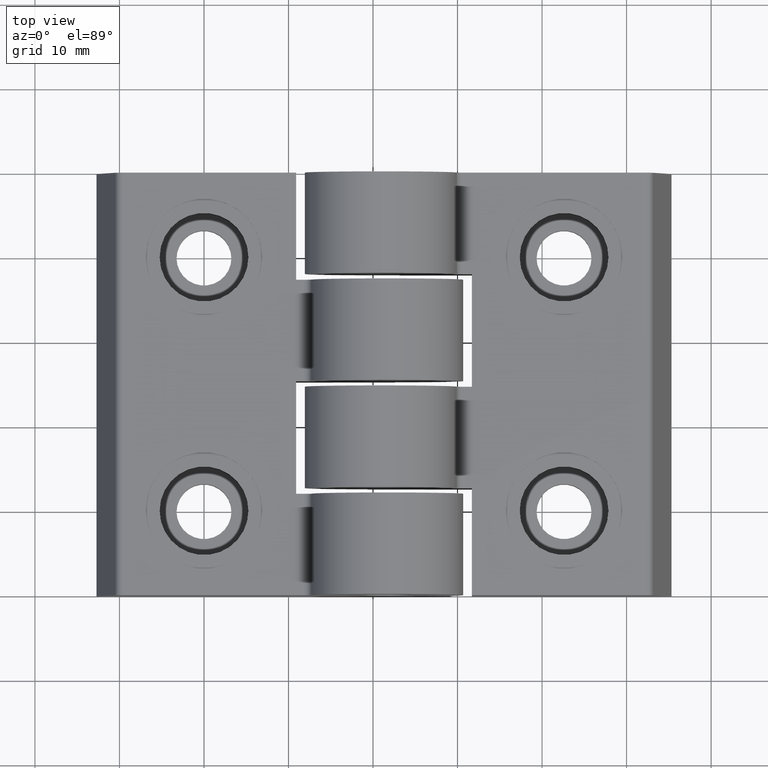
[diagram: clean part render]
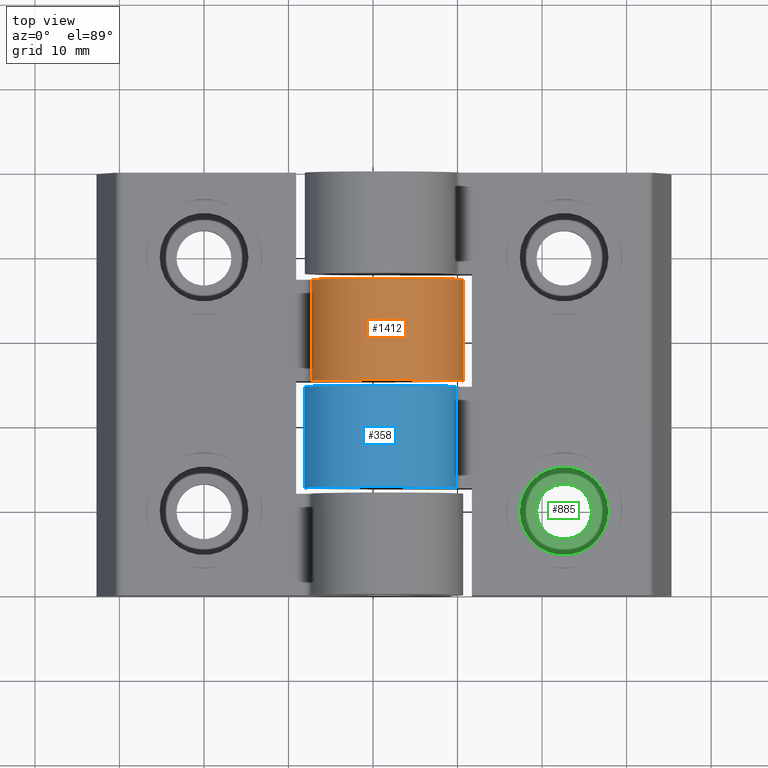
[diagram: same view with three faces highlighted in distinct colors, each labeled with its STEP entity id]
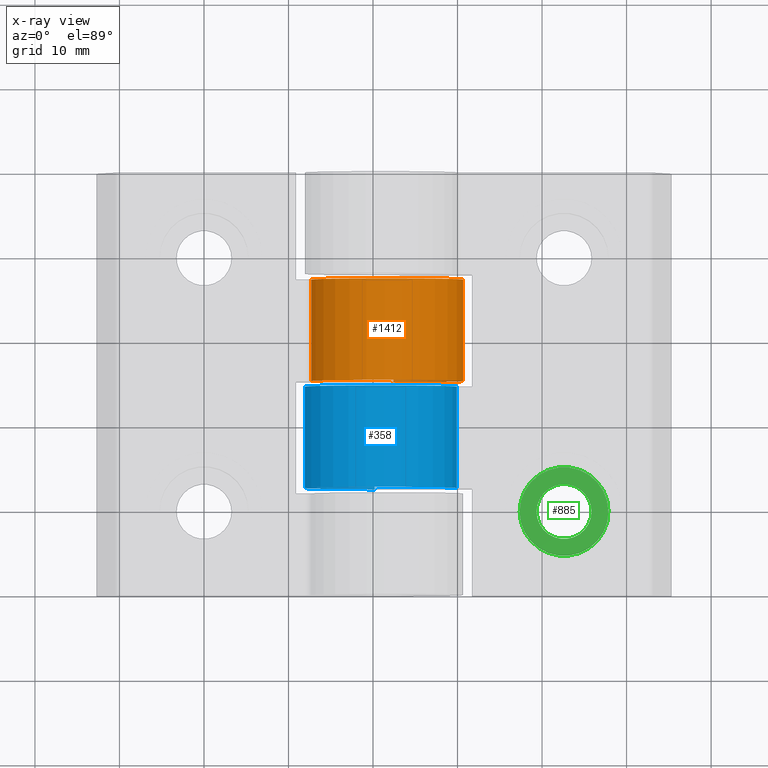
[diagram: x-ray of the same camera — body ghosted, the three highlighted faces saturated]
A machine part, top view with three faces highlighted in distinct colors.
The next image is the same camera in x-ray (body ghosted, the three faces saturated) — at least one of them is partly hidden behind the body in this view.
Their STEP definitions:

[orange] entity #1412 — the highlighted cylindrical surface (partial cylindrical patch) has radius 9 mm, axis along (0, 1, -0).
#1320=CARTESIAN_POINT('',(12.728006982865679,15.331985886236993,10.899997909476069));
#1321=VERTEX_POINT('',#1320);
#1329=CARTESIAN_POINT('',(12.728006982865679,27.331983222189216,10.899997909476069));
#1330=VERTEX_POINT('',#1329);
#1331=CARTESIAN_POINT('',(12.728006982865683,15.331985886236993,10.899997909476069));
#1332=DIRECTION('',(0.0,1.0,0.0));
#1333=VECTOR('',#1332,11.999997335952223);
#1334=LINE('',#1331,#1333);
#1335=EDGE_CURVE('',#1321,#1330,#1334,.T.);
#1380=CARTESIAN_POINT('',(21.682901271888966,-9.999997779959813,10.000000666356073));
#1381=DIRECTION('',(1.224647E-016,1.0,-6.123234E-017));
#1382=DIRECTION('',(-0.994987475757264,1.279740E-016,0.099999615430205));
#1383=AXIS2_PLACEMENT_3D('',#1380,#1381,#1382);
#1384=CYLINDRICAL_SURFACE('',#1383,9.000007042508656);
#1385=ORIENTED_EDGE('',*,*,#1335,.F.);
#1386=CARTESIAN_POINT('',(22.408279035607819,15.331985886236993,1.029273055670983));
#1387=VERTEX_POINT('',#1386);
#1388=CARTESIAN_POINT('',(21.682901271888969,15.331985886236993,10.000000666356071));
#1389=DIRECTION('',(-1.224647E-016,-1.0,6.123234E-017));
#1390=DIRECTION('',(-0.994987475757264,1.279740E-016,0.099999615430204));
#1391=AXIS2_PLACEMENT_3D('',#1388,#1389,#1390);
#1392=CIRCLE('',#1391,9.000007042508656);
#1393=EDGE_CURVE('',#1387,#1321,#1392,.T.);
#1394=ORIENTED_EDGE('',*,*,#1393,.F.);
#1395=CARTESIAN_POINT('',(22.408279035607819,27.331983222189216,1.029273055670982));
#1396=VERTEX_POINT('',#1395);
#1397=CARTESIAN_POINT('',(22.408279035607823,15.331985886236993,1.029273055670983));
#1398=DIRECTION('',(0.0,1.0,0.0));
#1399=VECTOR('',#1398,11.999997335952223);
#1400=LINE('',#1397,#1399);
#1401=EDGE_CURVE('',#1387,#1396,#1400,.T.);
#1402=ORIENTED_EDGE('',*,*,#1401,.T.);
#1403=CARTESIAN_POINT('',(21.682901271888969,27.331983222189216,10.000000666356071));
#1404=DIRECTION('',(1.224647E-016,1.0,-6.123234E-017));
#1405=DIRECTION('',(-0.994987475757264,1.279740E-016,0.099999615430204));
#1406=AXIS2_PLACEMENT_3D('',#1403,#1404,#1405);
#1407=CIRCLE('',#1406,9.000007042508656);
#1408=EDGE_CURVE('',#1330,#1396,#1407,.T.);
#1409=ORIENTED_EDGE('',*,*,#1408,.F.);
#1410=EDGE_LOOP('',(#1385,#1394,#1402,#1409));
#1411=FACE_OUTER_BOUND('',#1410,.T.);
#1412=ADVANCED_FACE('',(#1411),#1384,.T.);

[blue] entity #358 — the highlighted cylindrical surface (partial cylindrical patch) has radius 9 mm, axis along (0, -1, 0).
#266=CARTESIAN_POINT('',(29.871981079764339,14.668011263642171,10.899997909476069));
#267=VERTEX_POINT('',#266);
#275=CARTESIAN_POINT('',(29.871981079764339,2.668013927689949,10.899997909476070));
#276=VERTEX_POINT('',#275);
#277=CARTESIAN_POINT('',(29.871981079764339,14.668011263642171,10.899997909476070));
#278=DIRECTION('',(0.0,-1.0,0.0));
#279=VECTOR('',#278,11.999997335952223);
#280=LINE('',#277,#279);
#281=EDGE_CURVE('',#267,#276,#280,.T.);
#326=CARTESIAN_POINT('',(20.917086790741052,39.999994929838977,10.000000666356071));
#327=DIRECTION('',(7.703720E-034,-1.0,6.123234E-017));
#328=DIRECTION('',(0.994987475757264,6.123210E-018,0.099999615430205));
#329=AXIS2_PLACEMENT_3D('',#326,#327,#328);
#330=CYLINDRICAL_SURFACE('',#329,9.000007042508656);
#331=ORIENTED_EDGE('',*,*,#281,.F.);
#332=CARTESIAN_POINT('',(20.191709027022199,14.668011263642171,1.029273055670983));
#333=VERTEX_POINT('',#332);
#334=CARTESIAN_POINT('',(20.917086790741052,14.668011263642171,10.000000666356071));
#335=DIRECTION('',(-7.703720E-034,1.0,-6.123234E-017));
#336=DIRECTION('',(0.994987475757264,6.123210E-018,0.099999615430204));
#337=AXIS2_PLACEMENT_3D('',#334,#335,#336);
#338=CIRCLE('',#337,9.000007042508656);
#339=EDGE_CURVE('',#333,#267,#338,.T.);
#340=ORIENTED_EDGE('',*,*,#339,.F.);
#341=CARTESIAN_POINT('',(20.191709027022199,2.668013927689948,1.029273055670984));
#342=VERTEX_POINT('',#341);
#343=CARTESIAN_POINT('',(20.191709027022199,14.668011263642171,1.029273055670983));
#344=DIRECTION('',(0.0,-1.0,0.0));
#345=VECTOR('',#344,11.999997335952223);
#346=LINE('',#343,#345);
#347=EDGE_CURVE('',#333,#342,#346,.T.);
#348=ORIENTED_EDGE('',*,*,#347,.T.);
#349=CARTESIAN_POINT('',(20.917086790741052,2.668013927689949,10.000000666356073));
#350=DIRECTION('',(7.703720E-034,-1.0,6.123234E-017));
#351=DIRECTION('',(0.994987475757264,6.123210E-018,0.099999615430204));
#352=AXIS2_PLACEMENT_3D('',#349,#350,#351);
#353=CIRCLE('',#352,9.000007042508656);
#354=EDGE_CURVE('',#276,#342,#353,.T.);
#355=ORIENTED_EDGE('',*,*,#354,.F.);
#356=EDGE_LOOP('',(#331,#340,#348,#355));
#357=FACE_OUTER_BOUND('',#356,.T.);
#358=ADVANCED_FACE('',(#357),#330,.T.);

[green] entity #885 — the highlighted planar face has unit normal (0, 0, -1).
#826=CARTESIAN_POINT('',(37.349988506623504,0.000011439997252,4.000005036021520));
#827=VERTEX_POINT('',#826);
#834=CARTESIAN_POINT('',(47.849987618636533,0.000011439997252,4.000005036021520));
#835=VERTEX_POINT('',#834);
#836=CARTESIAN_POINT('',(42.599988062630018,0.000011439997252,4.000005036021520));
#837=DIRECTION('',(0.0,-6.123234E-017,-1.0));
#838=DIRECTION('',(-1.0,0.0,0.0));
#839=AXIS2_PLACEMENT_3D('',#836,#837,#838);
#840=CIRCLE('',#839,5.249999556006515);
#841=EDGE_CURVE('',#827,#835,#840,.T.);
#843=CARTESIAN_POINT('',(42.599988062630018,0.000011439997252,4.000005036021520));
#844=DIRECTION('',(0.0,-6.123234E-017,-1.0));
#845=DIRECTION('',(-1.0,0.0,0.0));
#846=AXIS2_PLACEMENT_3D('',#843,#844,#845);
#847=CIRCLE('',#846,5.249999556006515);
#848=EDGE_CURVE('',#835,#827,#847,.T.);
#856=CARTESIAN_POINT('',(32.099988950616989,-10.499987672015777,4.000005036021521));
#857=DIRECTION('',(0.0,0.0,-1.0));
#858=DIRECTION('',(0.0,1.0,0.0));
#859=AXIS2_PLACEMENT_3D('',#856,#857,#858);
#860=PLANE('',#859);
#861=ORIENTED_EDGE('',*,*,#848,.F.);
#862=ORIENTED_EDGE('',*,*,#841,.F.);
#863=EDGE_LOOP('',(#861,#862));
#864=FACE_OUTER_BOUND('',#863,.T.);
#865=CARTESIAN_POINT('',(39.349988062630018,0.000011439997252,4.000005036021520));
#866=VERTEX_POINT('',#865);
#867=CARTESIAN_POINT('',(45.849988062630018,0.000011439997252,4.000005036021520));
#868=VERTEX_POINT('',#867);
#869=CARTESIAN_POINT('',(42.599988062630018,0.000011439997252,4.000005036021520));
#870=DIRECTION('',(0.0,-6.123234E-017,-1.0));
#871=DIRECTION('',(-1.0,0.0,0.0));
#872=AXIS2_PLACEMENT_3D('',#869,#870,#871);
#873=CIRCLE('',#872,3.250000000000000);
#874=EDGE_CURVE('',#866,#868,#873,.T.);
#875=ORIENTED_EDGE('',*,*,#874,.T.);
#876=CARTESIAN_POINT('',(42.599988062630018,0.000011439997252,4.000005036021520));
#877=DIRECTION('',(0.0,-6.123234E-017,-1.0));
#878=DIRECTION('',(-1.0,0.0,0.0));
#879=AXIS2_PLACEMENT_3D('',#876,#877,#878);
#880=CIRCLE('',#879,3.250000000000000);
#881=EDGE_CURVE('',#868,#866,#880,.T.);
#882=ORIENTED_EDGE('',*,*,#881,.T.);
#883=EDGE_LOOP('',(#875,#882));
#884=FACE_BOUND('',#883,.T.);
#885=ADVANCED_FACE('',(#864,#884),#860,.F.);